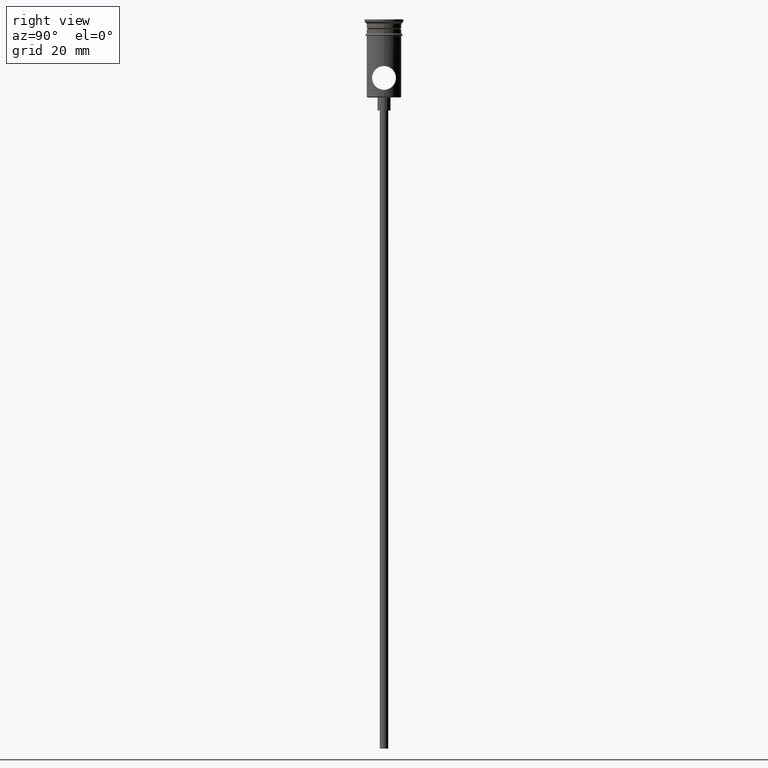
[diagram: clean part render]
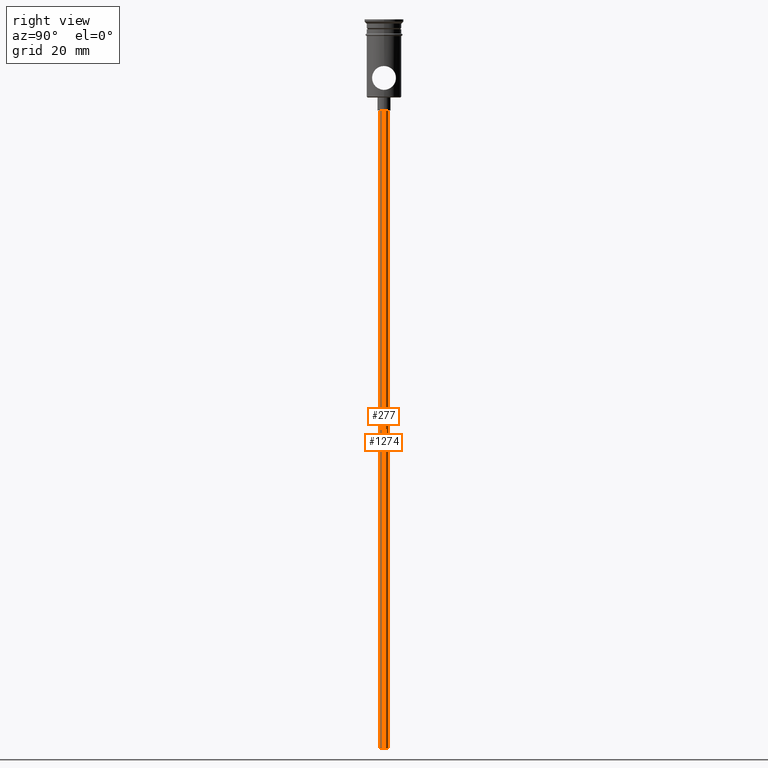
[diagram: same view with one multi-face feature highlighted, each face labeled with its STEP entity id]
A machine part, right view. The highlighted faces form ONE feature: a constant-radius fillet chain: 2 tangent blend faces with common blend radius 1 mm. The faces share edges in the B-rep.
Their STEP definitions:
[1] entity #1274 (Cylinder):
#8 = AXIS2_PLACEMENT_3D ( 'NONE', #1392, #638, #407 ) ;
#68 = EDGE_LOOP ( 'NONE', ( #205, #738, #1180, #785 ) ) ;
#146 = CARTESIAN_POINT ( 'NONE',  ( 0.9999999999999997780, 0.000000000000000000, -167.9999999999999716 ) ) ;
#205 = ORIENTED_EDGE ( 'NONE', *, *, #985, .F. ) ;
#309 = CARTESIAN_POINT ( 'NONE',  ( 0.9999999999999997780, 0.000000000000000000, -167.9999999999999716 ) ) ;
#356 = CARTESIAN_POINT ( 'NONE',  ( 0.000000000000000000, 0.000000000000000000, -167.9999999999999716 ) ) ;
#364 = LINE ( 'NONE', #1337, #437 ) ;
#407 = DIRECTION ( 'NONE',  ( -1.000000000000000000, 0.000000000000000000, 0.000000000000000000 ) ) ;
#437 = VECTOR ( 'NONE', #595, 1000.000000000000000 ) ;
#446 = CARTESIAN_POINT ( 'NONE',  ( 0.000000000000000000, 0.000000000000000000, -20.99999999999999645 ) ) ;
#536 = AXIS2_PLACEMENT_3D ( 'NONE', #446, #754, #969 ) ;
#540 = CARTESIAN_POINT ( 'NONE',  ( -0.9999999999999997780, 1.224646799147352961E-16, -20.99999999999999645 ) ) ;
#595 = DIRECTION ( 'NONE',  ( -0.000000000000000000, -0.000000000000000000, 1.000000000000000000 ) ) ;
#638 = DIRECTION ( 'NONE',  ( 0.000000000000000000, 0.000000000000000000, -1.000000000000000000 ) ) ;
#715 = CYLINDRICAL_SURFACE ( 'NONE', #1112, 0.9999999999999997780 ) ;
#738 = ORIENTED_EDGE ( 'NONE', *, *, #1290, .T. ) ;
#741 = VERTEX_POINT ( 'NONE', #1204 ) ;
#754 = DIRECTION ( 'NONE',  ( 0.000000000000000000, 0.000000000000000000, -1.000000000000000000 ) ) ;
#760 = VERTEX_POINT ( 'NONE', #309 ) ;
#785 = ORIENTED_EDGE ( 'NONE', *, *, #921, .F. ) ;
#855 = VECTOR ( 'NONE', #1148, 1000.000000000000000 ) ;
#859 = DIRECTION ( 'NONE',  ( 1.000000000000000000, 0.000000000000000000, 0.000000000000000000 ) ) ;
#892 = CARTESIAN_POINT ( 'NONE',  ( 0.9999999999999997780, 0.000000000000000000, -20.99999999999999645 ) ) ;
#921 = EDGE_CURVE ( 'NONE', #760, #1330, #1033, .T. ) ;
#932 = CIRCLE ( 'NONE', #536, 0.9999999999999997780 ) ;
#958 = DIRECTION ( 'NONE',  ( -0.000000000000000000, -0.000000000000000000, 1.000000000000000000 ) ) ;
#969 = DIRECTION ( 'NONE',  ( -1.000000000000000000, 0.000000000000000000, 0.000000000000000000 ) ) ;
#985 = EDGE_CURVE ( 'NONE', #741, #760, #1384, .T. ) ;
#1033 = LINE ( 'NONE', #146, #855 ) ;
#1084 = EDGE_CURVE ( 'NONE', #1259, #1330, #932, .T. ) ;
#1112 = AXIS2_PLACEMENT_3D ( 'NONE', #356, #958, #859 ) ;
#1148 = DIRECTION ( 'NONE',  ( -0.000000000000000000, -0.000000000000000000, 1.000000000000000000 ) ) ;
#1180 = ORIENTED_EDGE ( 'NONE', *, *, #1084, .T. ) ;
#1204 = CARTESIAN_POINT ( 'NONE',  ( -0.9999999999999997780, 1.224646799147352961E-16, -167.9999999999999716 ) ) ;
#1247 = FACE_OUTER_BOUND ( 'NONE', #68, .T. ) ;
#1259 = VERTEX_POINT ( 'NONE', #540 ) ;
#1274 = ADVANCED_FACE ( 'NONE', ( #1247 ), #715, .T. ) ;
#1290 = EDGE_CURVE ( 'NONE', #741, #1259, #364, .T. ) ;
#1330 = VERTEX_POINT ( 'NONE', #892 ) ;
#1337 = CARTESIAN_POINT ( 'NONE',  ( -0.9999999999999997780, 1.224646799147352961E-16, -167.9999999999999716 ) ) ;
#1384 = CIRCLE ( 'NONE', #8, 0.9999999999999997780 ) ;
#1392 = CARTESIAN_POINT ( 'NONE',  ( 0.000000000000000000, 0.000000000000000000, -167.9999999999999716 ) ) ;
[2] entity #277 (Cylinder):
#5 = EDGE_CURVE ( 'NONE', #760, #741, #662, .T. ) ;
#60 = EDGE_CURVE ( 'NONE', #1330, #1259, #800, .T. ) ;
#133 = CARTESIAN_POINT ( 'NONE',  ( 0.000000000000000000, 0.000000000000000000, -167.9999999999999716 ) ) ;
#146 = CARTESIAN_POINT ( 'NONE',  ( 0.9999999999999997780, 0.000000000000000000, -167.9999999999999716 ) ) ;
#165 = CARTESIAN_POINT ( 'NONE',  ( 0.000000000000000000, 0.000000000000000000, -167.9999999999999716 ) ) ;
#277 = ADVANCED_FACE ( 'NONE', ( #798 ), #566, .T. ) ;
#309 = CARTESIAN_POINT ( 'NONE',  ( 0.9999999999999997780, 0.000000000000000000, -167.9999999999999716 ) ) ;
#364 = LINE ( 'NONE', #1337, #437 ) ;
#377 = DIRECTION ( 'NONE',  ( -1.000000000000000000, 0.000000000000000000, 0.000000000000000000 ) ) ;
#427 = ORIENTED_EDGE ( 'NONE', *, *, #60, .T. ) ;
#437 = VECTOR ( 'NONE', #595, 1000.000000000000000 ) ;
#494 = DIRECTION ( 'NONE',  ( -1.000000000000000000, 0.000000000000000000, 0.000000000000000000 ) ) ;
#503 = CARTESIAN_POINT ( 'NONE',  ( 0.000000000000000000, 0.000000000000000000, -20.99999999999999645 ) ) ;
#540 = CARTESIAN_POINT ( 'NONE',  ( -0.9999999999999997780, 1.224646799147352961E-16, -20.99999999999999645 ) ) ;
#566 = CYLINDRICAL_SURFACE ( 'NONE', #906, 0.9999999999999997780 ) ;
#595 = DIRECTION ( 'NONE',  ( -0.000000000000000000, -0.000000000000000000, 1.000000000000000000 ) ) ;
#617 = AXIS2_PLACEMENT_3D ( 'NONE', #165, #1155, #377 ) ;
#659 = ORIENTED_EDGE ( 'NONE', *, *, #921, .T. ) ;
#662 = CIRCLE ( 'NONE', #617, 0.9999999999999997780 ) ;
#741 = VERTEX_POINT ( 'NONE', #1204 ) ;
#753 = AXIS2_PLACEMENT_3D ( 'NONE', #503, #1146, #494 ) ;
#760 = VERTEX_POINT ( 'NONE', #309 ) ;
#798 = FACE_OUTER_BOUND ( 'NONE', #945, .T. ) ;
#800 = CIRCLE ( 'NONE', #753, 0.9999999999999997780 ) ;
#855 = VECTOR ( 'NONE', #1148, 1000.000000000000000 ) ;
#892 = CARTESIAN_POINT ( 'NONE',  ( 0.9999999999999997780, 0.000000000000000000, -20.99999999999999645 ) ) ;
#906 = AXIS2_PLACEMENT_3D ( 'NONE', #133, #1018, #1320 ) ;
#921 = EDGE_CURVE ( 'NONE', #760, #1330, #1033, .T. ) ;
#945 = EDGE_LOOP ( 'NONE', ( #1195, #1281, #659, #427 ) ) ;
#1018 = DIRECTION ( 'NONE',  ( -0.000000000000000000, -0.000000000000000000, 1.000000000000000000 ) ) ;
#1033 = LINE ( 'NONE', #146, #855 ) ;
#1146 = DIRECTION ( 'NONE',  ( 0.000000000000000000, 0.000000000000000000, -1.000000000000000000 ) ) ;
#1148 = DIRECTION ( 'NONE',  ( -0.000000000000000000, -0.000000000000000000, 1.000000000000000000 ) ) ;
#1155 = DIRECTION ( 'NONE',  ( 0.000000000000000000, 0.000000000000000000, -1.000000000000000000 ) ) ;
#1195 = ORIENTED_EDGE ( 'NONE', *, *, #1290, .F. ) ;
#1204 = CARTESIAN_POINT ( 'NONE',  ( -0.9999999999999997780, 1.224646799147352961E-16, -167.9999999999999716 ) ) ;
#1259 = VERTEX_POINT ( 'NONE', #540 ) ;
#1281 = ORIENTED_EDGE ( 'NONE', *, *, #5, .F. ) ;
#1290 = EDGE_CURVE ( 'NONE', #741, #1259, #364, .T. ) ;
#1320 = DIRECTION ( 'NONE',  ( 1.000000000000000000, 0.000000000000000000, 0.000000000000000000 ) ) ;
#1330 = VERTEX_POINT ( 'NONE', #892 ) ;
#1337 = CARTESIAN_POINT ( 'NONE',  ( -0.9999999999999997780, 1.224646799147352961E-16, -167.9999999999999716 ) ) ;